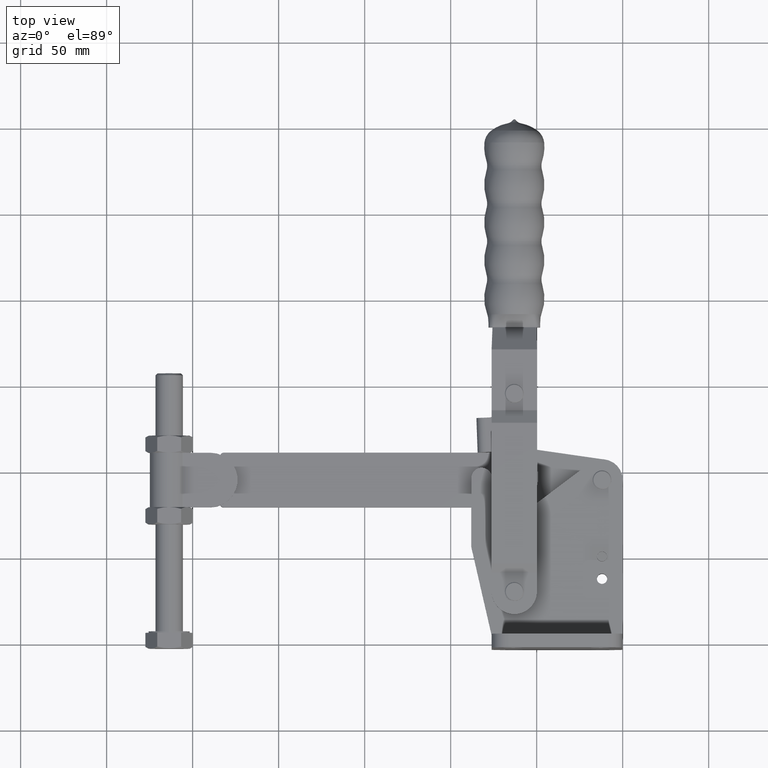
[diagram: clean part render]
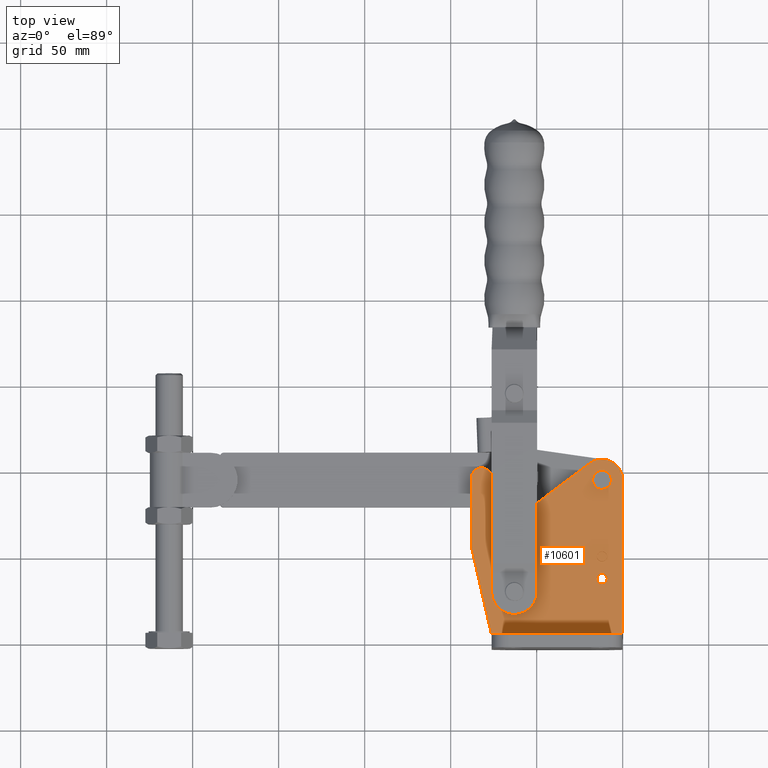
[diagram: same view with one face highlighted and labeled with its STEP entity id]
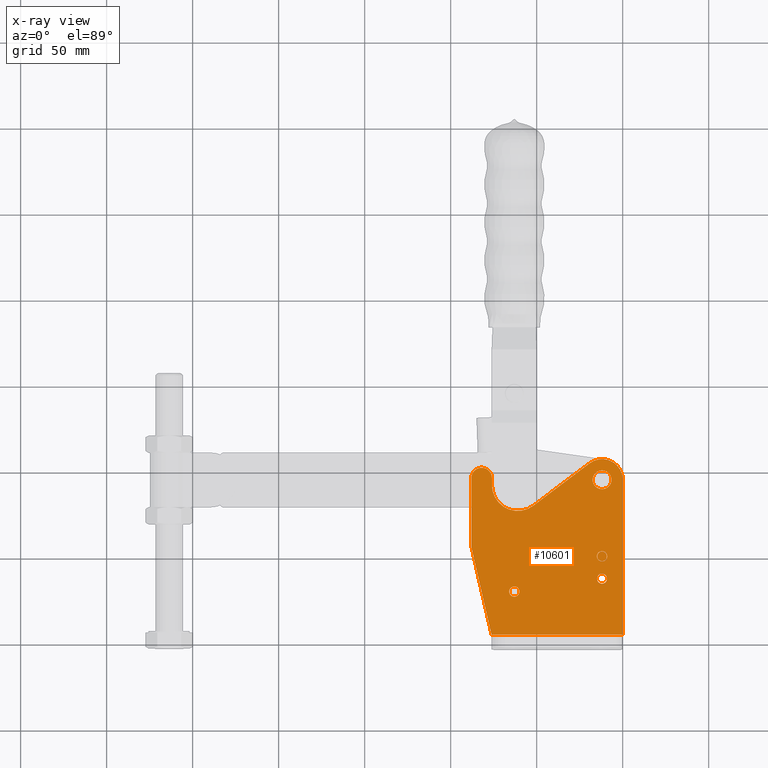
[diagram: x-ray of the same camera — body ghosted, the highlighted face saturated]
A machine part, top view. The second image highlights one B-rep face of the part: STEP entity #10601.
The next image is the same camera in x-ray: the body ghosted, the highlighted face saturated — about 0% of this face is hidden behind the body in this view.
In plain terms, the highlighted planar face has unit normal (0, 0, 1).
Its self-contained STEP definition (entity closure, byte-faithful):
#203 = VERTEX_POINT ( 'NONE', #4165 ) ;
#262 = CARTESIAN_POINT ( 'NONE',  ( -60.99999999999997200, 91.88351431518093200, 5.000000000000000000 ) ) ;
#295 = CIRCLE ( 'NONE', #324, 3.000000000000000900 ) ;
#324 = AXIS2_PLACEMENT_3D ( 'NONE', #3304, #10646, #4383 ) ;
#332 = ORIENTED_EDGE ( 'NONE', *, *, #5422, .T. ) ;
#337 = LINE ( 'NONE', #9317, #10762 ) ;
#468 = ORIENTED_EDGE ( 'NONE', *, *, #932, .T. ) ;
#604 = EDGE_CURVE ( 'NONE', #11665, #10358, #11851, .T. ) ;
#629 = EDGE_LOOP ( 'NONE', ( #5075, #5527 ) ) ;
#654 = VERTEX_POINT ( 'NONE', #7039 ) ;
#698 = CIRCLE ( 'NONE', #1812, 2.750000000000000900 ) ;
#739 = ORIENTED_EDGE ( 'NONE', *, *, #13335, .F. ) ;
#769 = ORIENTED_EDGE ( 'NONE', *, *, #6854, .T. ) ;
#828 = VERTEX_POINT ( 'NONE', #7134 ) ;
#909 = CARTESIAN_POINT ( 'NONE',  ( -14.99999999999996100, 37.52000000000001000, 5.000000000000000000 ) ) ;
#930 = DIRECTION ( 'NONE',  ( 0.0000000000000000000, 0.0000000000000000000, 1.000000000000000000 ) ) ;
#932 = EDGE_CURVE ( 'NONE', #12216, #10889, #10036, .T. ) ;
#970 = DIRECTION ( 'NONE',  ( 0.0000000000000000000, 0.0000000000000000000, 1.000000000000000000 ) ) ;
#1003 = LINE ( 'NONE', #12568, #3728 ) ;
#1028 = EDGE_CURVE ( 'NONE', #10951, #8510, #10849, .T. ) ;
#1029 = DIRECTION ( 'NONE',  ( 1.000000000000000000, 0.0000000000000000000, 0.0000000000000000000 ) ) ;
#1219 = EDGE_LOOP ( 'NONE', ( #7880, #1437 ) ) ;
#1392 = PLANE ( 'NONE',  #6568 ) ;
#1437 = ORIENTED_EDGE ( 'NONE', *, *, #4407, .F. ) ;
#1442 = EDGE_CURVE ( 'NONE', #654, #8071, #3636, .T. ) ;
#1517 = VERTEX_POINT ( 'NONE', #1984 ) ;
#1537 = DIRECTION ( 'NONE',  ( 0.2241183702932867400, -0.9745619303549062400, 0.0000000000000000000 ) ) ;
#1624 = VECTOR ( 'NONE', #11302, 1000.000000000000100 ) ;
#1668 = CARTESIAN_POINT ( 'NONE',  ( -11.99999999999999800, 50.52000000000001000, 5.000000000000000900 ) ) ;
#1789 = CARTESIAN_POINT ( 'NONE',  ( -88.00000000000000000, 96.00000000000002800, 5.000000000000000000 ) ) ;
#1812 = AXIS2_PLACEMENT_3D ( 'NONE', #13489, #7246, #1029 ) ;
#1837 = DIRECTION ( 'NONE',  ( 0.0000000000000000000, 0.0000000000000000000, 1.000000000000000000 ) ) ;
#1984 = CARTESIAN_POINT ( 'NONE',  ( -15.79262241404592800, 98.98321669313593000, 5.000000000000000000 ) ) ;
#2058 = CIRCLE ( 'NONE', #2175, 2.750000000000000900 ) ;
#2144 = EDGE_CURVE ( 'NONE', #11304, #8071, #2767, .T. ) ;
#2175 = AXIS2_PLACEMENT_3D ( 'NONE', #8052, #1837, #9117 ) ;
#2182 = DIRECTION ( 'NONE',  ( 0.0000000000000000000, 0.0000000000000000000, 1.000000000000000000 ) ) ;
#2394 = ORIENTED_EDGE ( 'NONE', *, *, #9137, .T. ) ;
#2403 = DIRECTION ( 'NONE',  ( 1.000000000000000000, 0.0000000000000000000, -0.0000000000000000000 ) ) ;
#2427 = EDGE_LOOP ( 'NONE', ( #2633, #4851 ) ) ;
#2503 = CIRCLE ( 'NONE', #11742, 3.000000000000000900 ) ;
#2565 = CIRCLE ( 'NONE', #4128, 3.000000000000002700 ) ;
#2633 = ORIENTED_EDGE ( 'NONE', *, *, #9673, .F. ) ;
#2684 = DIRECTION ( 'NONE',  ( 1.000000000000000000, 0.0000000000000000000, 0.0000000000000000000 ) ) ;
#2767 = LINE ( 'NONE', #8139, #8006 ) ;
#3150 = EDGE_CURVE ( 'NONE', #10889, #9435, #1003, .T. ) ;
#3184 = CIRCLE ( 'NONE', #4177, 6.000000000000005300 ) ;
#3302 = CIRCLE ( 'NONE', #8326, 5.500000000000005300 ) ;
#3304 = CARTESIAN_POINT ( 'NONE',  ( -11.99999999999999800, 50.52000000000001000, 5.000000000000000900 ) ) ;
#3510 = DIRECTION ( 'NONE',  ( 0.0000000000000000000, 0.0000000000000000000, 1.000000000000000000 ) ) ;
#3511 = DIRECTION ( 'NONE',  ( -0.0000000000000000000, -0.0000000000000000000, -1.000000000000000000 ) ) ;
#3561 = VECTOR ( 'NONE', #6862, 1000.000000000000000 ) ;
#3594 = CIRCLE ( 'NONE', #10361, 5.500000000000005300 ) ;
#3631 = DIRECTION ( 'NONE',  ( 1.000000000000000000, 0.0000000000000000000, 0.0000000000000000000 ) ) ;
#3636 = LINE ( 'NONE', #10445, #8532 ) ;
#3728 = VECTOR ( 'NONE', #4353, 1000.000000000000000 ) ;
#3899 = LINE ( 'NONE', #11022, #3561 ) ;
#3961 = CARTESIAN_POINT ( 'NONE',  ( -11.79975795251595500, 53.51330972711135600, 5.000000000000004400 ) ) ;
#4038 = DIRECTION ( 'NONE',  ( 0.0000000000000000000, 0.0000000000000000000, 1.000000000000000000 ) ) ;
#4128 = AXIS2_PLACEMENT_3D ( 'NONE', #10301, #4038, #11355 ) ;
#4165 = CARTESIAN_POINT ( 'NONE',  ( -8.207377585954089800, 91.01678330686412700, 5.000000000000000000 ) ) ;
#4177 = AXIS2_PLACEMENT_3D ( 'NONE', #11397, #5123, #12446 ) ;
#4238 = VERTEX_POINT ( 'NONE', #4865 ) ;
#4353 = DIRECTION ( 'NONE',  ( 0.0000000000000000000, 1.000000000000000000, 0.0000000000000000000 ) ) ;
#4383 = DIRECTION ( 'NONE',  ( 1.000000000000000000, 0.0000000000000000000, 0.0000000000000000000 ) ) ;
#4393 = LINE ( 'NONE', #10256, #1624 ) ;
#4407 = EDGE_CURVE ( 'NONE', #1517, #203, #3594, .T. ) ;
#4437 = DIRECTION ( 'NONE',  ( 0.0000000000000000000, 0.0000000000000000000, 1.000000000000000000 ) ) ;
#4491 = ORIENTED_EDGE ( 'NONE', *, *, #6052, .F. ) ;
#4554 = CARTESIAN_POINT ( 'NONE',  ( 0.0000000000000000000, 5.000000000000000000, 5.000000000000000000 ) ) ;
#4690 = AXIS2_PLACEMENT_3D ( 'NONE', #12291, #13351, #10041 ) ;
#4756 = VERTEX_POINT ( 'NONE', #11845 ) ;
#4851 = ORIENTED_EDGE ( 'NONE', *, *, #9737, .F. ) ;
#4865 = CARTESIAN_POINT ( 'NONE',  ( -66.00000000000002800, 30.00000000000000700, 5.000000000000000000 ) ) ;
#4866 = CIRCLE ( 'NONE', #5958, 3.000000000000000900 ) ;
#5012 = DIRECTION ( 'NONE',  ( -0.7986355100472897200, -0.6018150231520523800, 0.0000000000000000000 ) ) ;
#5075 = ORIENTED_EDGE ( 'NONE', *, *, #604, .F. ) ;
#5123 = DIRECTION ( 'NONE',  ( 0.0000000000000000000, 0.0000000000000000000, 1.000000000000000000 ) ) ;
#5165 = DIRECTION ( 'NONE',  ( -0.01677536731141127100, -0.9998592836252345700, 0.0000000000000000000 ) ) ;
#5263 = CARTESIAN_POINT ( 'NONE',  ( -76.20000000000006000, 4.999999999999984000, 5.000000000000000000 ) ) ;
#5359 = VERTEX_POINT ( 'NONE', #3961 ) ;
#5422 = EDGE_CURVE ( 'NONE', #8396, #12368, #698, .T. ) ;
#5527 = ORIENTED_EDGE ( 'NONE', *, *, #10028, .F. ) ;
#5571 = DIRECTION ( 'NONE',  ( 0.0000000000000000000, 0.0000000000000000000, 1.000000000000000000 ) ) ;
#5675 = EDGE_CURVE ( 'NONE', #828, #12164, #8637, .T. ) ;
#5716 = ORIENTED_EDGE ( 'NONE', *, *, #1442, .T. ) ;
#5809 = EDGE_CURVE ( 'NONE', #11304, #828, #3899, .T. ) ;
#5814 = CARTESIAN_POINT ( 'NONE',  ( -14.99957785087570300, 50.57032610193424200, 5.000000000000000900 ) ) ;
#5955 = CARTESIAN_POINT ( 'NONE',  ( -75.99999999999998600, 91.88351431518121600, 5.000000000000000000 ) ) ;
#5958 = AXIS2_PLACEMENT_3D ( 'NONE', #9780, #3510, #10835 ) ;
#5969 = EDGE_CURVE ( 'NONE', #10951, #6965, #4393, .T. ) ;
#6024 = CARTESIAN_POINT ( 'NONE',  ( -63.00000000000002800, 30.00000000000000700, 5.000000000000000000 ) ) ;
#6052 = EDGE_CURVE ( 'NONE', #5359, #12368, #337, .T. ) ;
#6349 = CARTESIAN_POINT ( 'NONE',  ( -8.999999999999959100, 37.52000000000001000, 5.000000000000000000 ) ) ;
#6568 = AXIS2_PLACEMENT_3D ( 'NONE', #7615, #8658, #2403 ) ;
#6588 = ORIENTED_EDGE ( 'NONE', *, *, #5675, .T. ) ;
#6610 = FACE_BOUND ( 'NONE', #1219, .T. ) ;
#6628 = CARTESIAN_POINT ( 'NONE',  ( -75.99999999999998600, 96.00000000000002800, 5.000000000000000000 ) ) ;
#6854 = EDGE_CURVE ( 'NONE', #9435, #12123, #3184, .T. ) ;
#6862 = DIRECTION ( 'NONE',  ( 0.0000000000000000000, 1.000000000000000000, 0.0000000000000000000 ) ) ;
#6965 = VERTEX_POINT ( 'NONE', #11578 ) ;
#7023 = DIRECTION ( 'NONE',  ( 0.0000000000000000000, -1.000000000000000000, 0.0000000000000000000 ) ) ;
#7039 = CARTESIAN_POINT ( 'NONE',  ( -88.00000000000000000, 56.31141531655289600, 5.000000000000000000 ) ) ;
#7101 = DIRECTION ( 'NONE',  ( 1.000000000000000000, 0.0000000000000000000, 0.0000000000000000000 ) ) ;
#7134 = CARTESIAN_POINT ( 'NONE',  ( -2.428612866367529900E-014, 95.00000000000002800, 5.000000000000000000 ) ) ;
#7147 = CARTESIAN_POINT ( 'NONE',  ( -12.00000000000001100, 95.00000000000002800, 5.000000000000000000 ) ) ;
#7179 = CARTESIAN_POINT ( 'NONE',  ( -12.00000000000001100, 95.00000000000002800, 5.000000000000000000 ) ) ;
#7246 = DIRECTION ( 'NONE',  ( 0.0000000000000000000, 0.0000000000000000000, 1.000000000000000000 ) ) ;
#7274 = ORIENTED_EDGE ( 'NONE', *, *, #11485, .T. ) ;
#7325 = EDGE_CURVE ( 'NONE', #8510, #8396, #2058, .T. ) ;
#7344 = CARTESIAN_POINT ( 'NONE',  ( -11.80395752497305200, 53.26300334450859700, 5.000000000000004400 ) ) ;
#7615 = CARTESIAN_POINT ( 'NONE',  ( -12.00000000000001100, 95.00000000000002800, 5.000000000000000000 ) ) ;
#7643 = ORIENTED_EDGE ( 'NONE', *, *, #5809, .T. ) ;
#7855 = AXIS2_PLACEMENT_3D ( 'NONE', #1668, #8952, #2684 ) ;
#7880 = ORIENTED_EDGE ( 'NONE', *, *, #11517, .F. ) ;
#7882 = CARTESIAN_POINT ( 'NONE',  ( -60.00000000000002800, 30.00000000000000700, 5.000000000000000000 ) ) ;
#8006 = VECTOR ( 'NONE', #11645, 1000.000000000000000 ) ;
#8052 = CARTESIAN_POINT ( 'NONE',  ( -11.99999999999999800, 50.52000000000001000, 5.000000000000000900 ) ) ;
#8071 = VERTEX_POINT ( 'NONE', #5263 ) ;
#8094 = CARTESIAN_POINT ( 'NONE',  ( -19.22178027782460300, 104.5836261205674900, 5.000000000000000000 ) ) ;
#8118 = VECTOR ( 'NONE', #7023, 1000.000000000000000 ) ;
#8139 = CARTESIAN_POINT ( 'NONE',  ( -11.99999999999999500, 5.000000000000004400, 5.000000000000000000 ) ) ;
#8168 = DIRECTION ( 'NONE',  ( 1.000000000000000000, 0.0000000000000000000, 0.0000000000000000000 ) ) ;
#8200 = DIRECTION ( 'NONE',  ( 1.000000000000000000, 0.0000000000000000000, 0.0000000000000000000 ) ) ;
#8323 = EDGE_CURVE ( 'NONE', #4756, #5359, #11301, .T. ) ;
#8326 = AXIS2_PLACEMENT_3D ( 'NONE', #7147, #930, #8168 ) ;
#8396 = VERTEX_POINT ( 'NONE', #9042 ) ;
#8419 = CARTESIAN_POINT ( 'NONE',  ( -11.99999999999999800, 50.52000000000001000, 5.000000000000000900 ) ) ;
#8510 = VERTEX_POINT ( 'NONE', #9314 ) ;
#8532 = VECTOR ( 'NONE', #1537, 1000.000000000000200 ) ;
#8620 = ORIENTED_EDGE ( 'NONE', *, *, #7325, .T. ) ;
#8637 = CIRCLE ( 'NONE', #9228, 11.99999999999998600 ) ;
#8658 = DIRECTION ( 'NONE',  ( 0.0000000000000000000, 0.0000000000000000000, 1.000000000000000000 ) ) ;
#8952 = DIRECTION ( 'NONE',  ( 0.0000000000000000000, 0.0000000000000000000, 1.000000000000000000 ) ) ;
#9042 = CARTESIAN_POINT ( 'NONE',  ( -9.250386970030604100, 50.47386773989363500, 5.000000000000000900 ) ) ;
#9050 = ORIENTED_EDGE ( 'NONE', *, *, #8323, .F. ) ;
#9067 = CARTESIAN_POINT ( 'NONE',  ( -88.00000000000000000, 96.00000000000002800, 5.000000000000000000 ) ) ;
#9069 = FACE_BOUND ( 'NONE', #12525, .T. ) ;
#9117 = DIRECTION ( 'NONE',  ( 1.000000000000000000, 0.0000000000000000000, 0.0000000000000000000 ) ) ;
#9137 = EDGE_CURVE ( 'NONE', #12123, #654, #10930, .T. ) ;
#9203 = LINE ( 'NONE', #12324, #12004 ) ;
#9228 = AXIS2_PLACEMENT_3D ( 'NONE', #11865, #5571, #12914 ) ;
#9314 = CARTESIAN_POINT ( 'NONE',  ( -14.74961302996939200, 50.56613226010638600, 5.000000000000000900 ) ) ;
#9317 = CARTESIAN_POINT ( 'NONE',  ( -11.79515504514298600, 53.78765601015220500, 5.000000000000004400 ) ) ;
#9391 = AXIS2_PLACEMENT_3D ( 'NONE', #10088, #4437, #12052 ) ;
#9394 = FACE_OUTER_BOUND ( 'NONE', #12722, .T. ) ;
#9435 = VERTEX_POINT ( 'NONE', #6628 ) ;
#9477 = DIRECTION ( 'NONE',  ( 1.000000000000000000, 0.0000000000000000000, 0.0000000000000000000 ) ) ;
#9673 = EDGE_CURVE ( 'NONE', #13046, #4238, #9773, .T. ) ;
#9737 = EDGE_CURVE ( 'NONE', #4238, #13046, #2565, .T. ) ;
#9773 = CIRCLE ( 'NONE', #12808, 3.000000000000002700 ) ;
#9780 = CARTESIAN_POINT ( 'NONE',  ( -11.99999999999996100, 37.52000000000001000, 5.000000000000000000 ) ) ;
#10028 = EDGE_CURVE ( 'NONE', #10358, #11665, #4866, .T. ) ;
#10036 = CIRCLE ( 'NONE', #10552, 15.00000000000001400 ) ;
#10041 = DIRECTION ( 'NONE',  ( 1.000000000000000000, 0.0000000000000000000, 0.0000000000000000000 ) ) ;
#10088 = CARTESIAN_POINT ( 'NONE',  ( -11.99999999999996100, 37.52000000000001000, 5.000000000000000000 ) ) ;
#10256 = CARTESIAN_POINT ( 'NONE',  ( -12.09511283023055700, 53.79268862034562200, 5.000000000000004400 ) ) ;
#10301 = CARTESIAN_POINT ( 'NONE',  ( -63.00000000000002800, 30.00000000000000700, 5.000000000000000000 ) ) ;
#10358 = VERTEX_POINT ( 'NONE', #909 ) ;
#10361 = AXIS2_PLACEMENT_3D ( 'NONE', #7179, #970, #8200 ) ;
#10445 = CARTESIAN_POINT ( 'NONE',  ( -88.00000000000000000, 56.31141531655289600, 5.000000000000000000 ) ) ;
#10498 = ORIENTED_EDGE ( 'NONE', *, *, #3150, .T. ) ;
#10531 = EDGE_CURVE ( 'NONE', #12702, #4756, #295, .T. ) ;
#10552 = AXIS2_PLACEMENT_3D ( 'NONE', #262, #3511, #3631 ) ;
#10601 = ADVANCED_FACE ( 'NONE', ( #12193, #11876, #9394, #6610, #9069 ), #1392, .T. ) ;
#10646 = DIRECTION ( 'NONE',  ( 0.0000000000000000000, 0.0000000000000000000, 1.000000000000000000 ) ) ;
#10762 = VECTOR ( 'NONE', #5165, 1000.000000000000100 ) ;
#10835 = DIRECTION ( 'NONE',  ( 1.000000000000000000, 0.0000000000000000000, 0.0000000000000000000 ) ) ;
#10849 = CIRCLE ( 'NONE', #4690, 2.750000000000000900 ) ;
#10889 = VERTEX_POINT ( 'NONE', #5955 ) ;
#10930 = LINE ( 'NONE', #9067, #8118 ) ;
#10951 = VERTEX_POINT ( 'NONE', #12380 ) ;
#11022 = CARTESIAN_POINT ( 'NONE',  ( 0.0000000000000000000, 0.0000000000000000000, 5.000000000000000000 ) ) ;
#11287 = ORIENTED_EDGE ( 'NONE', *, *, #5969, .F. ) ;
#11301 = CIRCLE ( 'NONE', #7855, 3.000000000000000900 ) ;
#11302 = DIRECTION ( 'NONE',  ( 0.01677536731141091700, 0.9998592836252345700, -0.0000000000000000000 ) ) ;
#11304 = VERTEX_POINT ( 'NONE', #4554 ) ;
#11355 = DIRECTION ( 'NONE',  ( 1.000000000000000000, 0.0000000000000000000, 0.0000000000000000000 ) ) ;
#11397 = CARTESIAN_POINT ( 'NONE',  ( -81.99999999999998600, 96.00000000000002800, 5.000000000000000000 ) ) ;
#11485 = EDGE_CURVE ( 'NONE', #12164, #12216, #9203, .T. ) ;
#11517 = EDGE_CURVE ( 'NONE', #203, #1517, #3302, .T. ) ;
#11578 = CARTESIAN_POINT ( 'NONE',  ( -12.09971573760345200, 53.51834233730478000, 5.000000000000000900 ) ) ;
#11645 = DIRECTION ( 'NONE',  ( -1.000000000000000000, -1.821231995776173800E-016, 0.0000000000000000000 ) ) ;
#11665 = VERTEX_POINT ( 'NONE', #6349 ) ;
#11742 = AXIS2_PLACEMENT_3D ( 'NONE', #8419, #2182, #9477 ) ;
#11845 = CARTESIAN_POINT ( 'NONE',  ( -9.000422149124293700, 50.46967389806577100, 5.000000000000000900 ) ) ;
#11851 = CIRCLE ( 'NONE', #9391, 3.000000000000000900 ) ;
#11865 = CARTESIAN_POINT ( 'NONE',  ( -12.00000000000001100, 95.00000000000002800, 5.000000000000000000 ) ) ;
#11876 = FACE_BOUND ( 'NONE', #629, .T. ) ;
#11882 = ORIENTED_EDGE ( 'NONE', *, *, #10531, .F. ) ;
#12004 = VECTOR ( 'NONE', #5012, 1000.000000000000200 ) ;
#12052 = DIRECTION ( 'NONE',  ( 1.000000000000000000, 0.0000000000000000000, 0.0000000000000000000 ) ) ;
#12123 = VERTEX_POINT ( 'NONE', #1789 ) ;
#12164 = VERTEX_POINT ( 'NONE', #8094 ) ;
#12193 = FACE_BOUND ( 'NONE', #2427, .T. ) ;
#12216 = VERTEX_POINT ( 'NONE', #12432 ) ;
#12291 = CARTESIAN_POINT ( 'NONE',  ( -11.99999999999999800, 50.52000000000001000, 5.000000000000000900 ) ) ;
#12324 = CARTESIAN_POINT ( 'NONE',  ( -19.22178027782460300, 104.5836261205674900, 5.000000000000000000 ) ) ;
#12368 = VERTEX_POINT ( 'NONE', #7344 ) ;
#12380 = CARTESIAN_POINT ( 'NONE',  ( -12.10391531006060900, 53.26803595470202200, 5.000000000000000900 ) ) ;
#12410 = ORIENTED_EDGE ( 'NONE', *, *, #2144, .F. ) ;
#12432 = CARTESIAN_POINT ( 'NONE',  ( -51.97277465271883300, 79.90398166447185700, 5.000000000000000000 ) ) ;
#12446 = DIRECTION ( 'NONE',  ( 1.000000000000000000, 0.0000000000000000000, 0.0000000000000000000 ) ) ;
#12525 = EDGE_LOOP ( 'NONE', ( #11287, #13195, #8620, #332, #4491, #9050, #11882, #739 ) ) ;
#12568 = CARTESIAN_POINT ( 'NONE',  ( -75.99999999999998600, 91.88351431518121600, 5.000000000000000000 ) ) ;
#12702 = VERTEX_POINT ( 'NONE', #5814 ) ;
#12722 = EDGE_LOOP ( 'NONE', ( #12410, #7643, #6588, #7274, #468, #10498, #769, #2394, #5716 ) ) ;
#12808 = AXIS2_PLACEMENT_3D ( 'NONE', #6024, #13348, #7101 ) ;
#12914 = DIRECTION ( 'NONE',  ( 1.000000000000000000, 0.0000000000000000000, 0.0000000000000000000 ) ) ;
#13046 = VERTEX_POINT ( 'NONE', #7882 ) ;
#13195 = ORIENTED_EDGE ( 'NONE', *, *, #1028, .T. ) ;
#13335 = EDGE_CURVE ( 'NONE', #6965, #12702, #2503, .T. ) ;
#13348 = DIRECTION ( 'NONE',  ( 0.0000000000000000000, 0.0000000000000000000, 1.000000000000000000 ) ) ;
#13351 = DIRECTION ( 'NONE',  ( 0.0000000000000000000, 0.0000000000000000000, 1.000000000000000000 ) ) ;
#13489 = CARTESIAN_POINT ( 'NONE',  ( -11.99999999999999800, 50.52000000000001000, 5.000000000000000900 ) ) ;